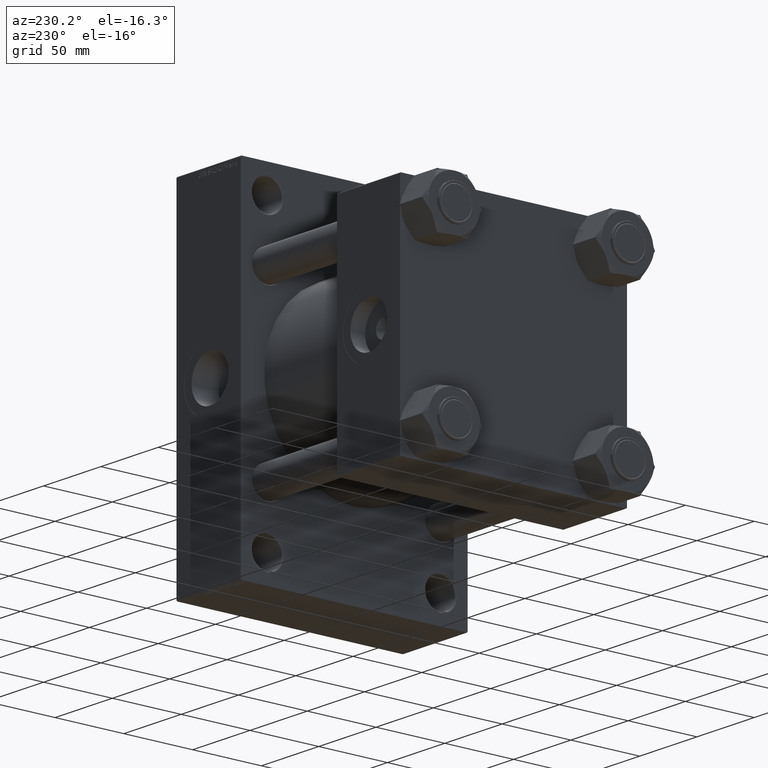
[diagram: clean part render]
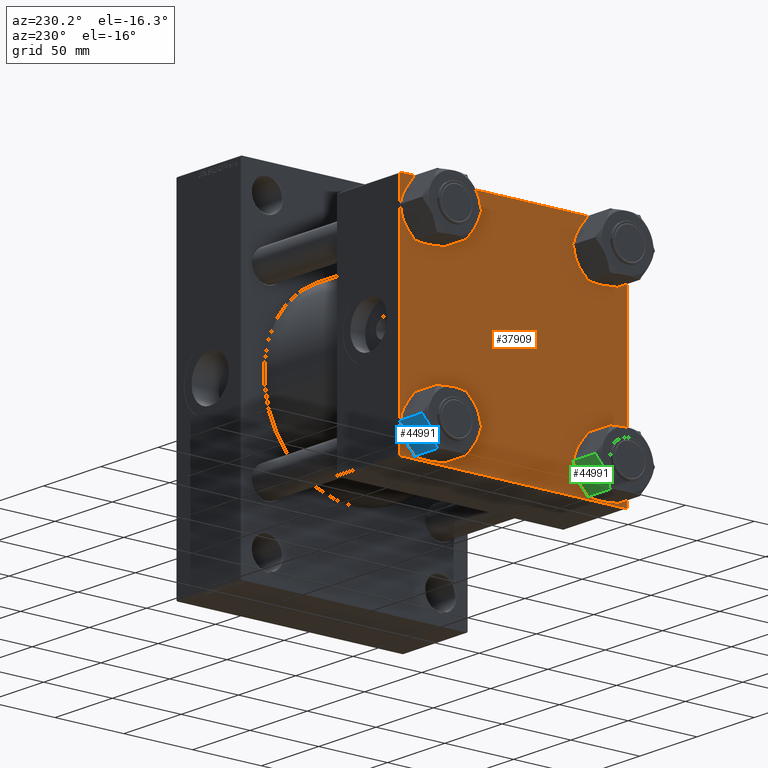
[diagram: same view with three faces highlighted in distinct colors, each labeled with its STEP entity id]
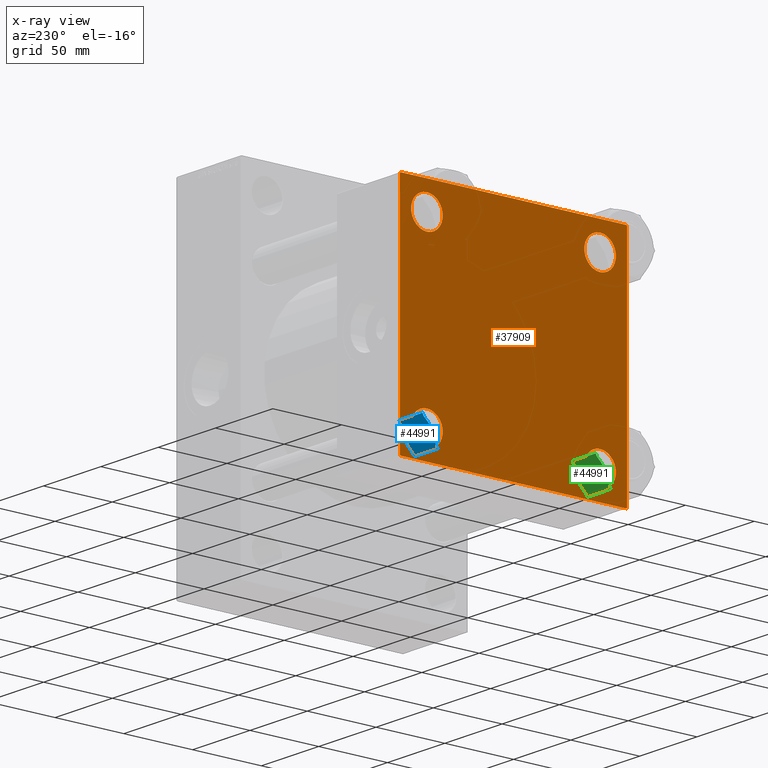
[diagram: x-ray of the same camera — body ghosted, the three highlighted faces saturated]
A machine part, auxiliary view with three faces highlighted in distinct colors.
The next image is the same camera in x-ray (body ghosted, the three faces saturated) — at least one of them is partly hidden behind the body in this view.
Their STEP definitions:

[orange] entity #37909 — the highlighted planar face has unit normal (-1, 0, 0).
#667 = CARTESIAN_POINT ( 'NONE',  ( 0.000000000000000000, 62.95000000000000284, -62.95000000000000284 ) ) ;
#1093 = VECTOR ( 'NONE', #36946, 1000.000000000000114 ) ;
#1631 = DIRECTION ( 'NONE',  ( 1.000000000000000000, -0.000000000000000000, -0.000000000000000000 ) ) ;
#1741 = CARTESIAN_POINT ( 'NONE',  ( 0.000000000000000000, -82.25000000000000000, 82.25000000000000000 ) ) ;
#1869 = AXIS2_PLACEMENT_3D ( 'NONE', #23114, #8187, #4338 ) ;
#2194 = CARTESIAN_POINT ( 'NONE',  ( 0.000000000000000000, 82.00000000000005684, 82.50000000000002842 ) ) ;
#2504 = CARTESIAN_POINT ( 'NONE',  ( 0.000000000000000000, 0.000000000000000000, 0.000000000000000000 ) ) ;
#2676 = ORIENTED_EDGE ( 'NONE', *, *, #3884, .T. ) ;
#3274 = CARTESIAN_POINT ( 'NONE',  ( 0.000000000000000000, 62.95000000000000284, -74.45000000000001705 ) ) ;
#3884 = EDGE_CURVE ( 'NONE', #37974, #16047, #37154, .T. ) ;
#4338 = DIRECTION ( 'NONE',  ( 0.000000000000000000, 0.000000000000000000, 1.000000000000000000 ) ) ;
#4575 = EDGE_LOOP ( 'NONE', ( #29239, #29200 ) ) ;
#4580 = VERTEX_POINT ( 'NONE', #38118 ) ;
#4746 = CARTESIAN_POINT ( 'NONE',  ( 0.000000000000000000, 62.95000000000000284, -51.44999999999999574 ) ) ;
#5120 = ORIENTED_EDGE ( 'NONE', *, *, #42693, .T. ) ;
#6092 = DIRECTION ( 'NONE',  ( 0.000000000000000000, 0.000000000000000000, -1.000000000000000000 ) ) ;
#6365 = DIRECTION ( 'NONE',  ( -1.000000000000000000, 0.000000000000000000, 0.000000000000000000 ) ) ;
#6531 = VERTEX_POINT ( 'NONE', #39704 ) ;
#6840 = FACE_BOUND ( 'NONE', #9731, .T. ) ;
#7472 = VERTEX_POINT ( 'NONE', #25954 ) ;
#8187 = DIRECTION ( 'NONE',  ( 1.000000000000000000, -0.000000000000000000, -0.000000000000000000 ) ) ;
#8279 = VERTEX_POINT ( 'NONE', #21904 ) ;
#8517 = DIRECTION ( 'NONE',  ( -0.000000000000000000, -0.7071067811865474617, -0.7071067811865474617 ) ) ;
#8749 = VECTOR ( 'NONE', #28018, 1000.000000000000114 ) ;
#9053 = CARTESIAN_POINT ( 'NONE',  ( 0.000000000000000000, -62.94999999999998153, 74.45000000000003126 ) ) ;
#9073 = DIRECTION ( 'NONE',  ( 1.000000000000000000, -0.000000000000000000, -0.000000000000000000 ) ) ;
#9400 = CARTESIAN_POINT ( 'NONE',  ( 0.000000000000000000, -82.49999999999997158, 82.00000000000001421 ) ) ;
#9426 = EDGE_CURVE ( 'NONE', #26120, #6531, #15670, .T. ) ;
#9496 = AXIS2_PLACEMENT_3D ( 'NONE', #667, #40696, #37080 ) ;
#9573 = CARTESIAN_POINT ( 'NONE',  ( 0.000000000000000000, -62.94999999999998153, 62.95000000000001705 ) ) ;
#9731 = EDGE_LOOP ( 'NONE', ( #21799, #12134 ) ) ;
#9839 = ORIENTED_EDGE ( 'NONE', *, *, #17636, .T. ) ;
#9971 = FACE_BOUND ( 'NONE', #18046, .T. ) ;
#10188 = VERTEX_POINT ( 'NONE', #34646 ) ;
#10419 = EDGE_CURVE ( 'NONE', #4580, #26126, #31822, .T. ) ;
#10786 = DIRECTION ( 'NONE',  ( 0.000000000000000000, -1.000000000000000000, -8.410780489584519171E-17 ) ) ;
#11725 = VECTOR ( 'NONE', #27481, 1000.000000000000000 ) ;
#12134 = ORIENTED_EDGE ( 'NONE', *, *, #19799, .T. ) ;
#12167 = DIRECTION ( 'NONE',  ( 1.000000000000000000, -0.000000000000000000, -0.000000000000000000 ) ) ;
#12206 = DIRECTION ( 'NONE',  ( 0.000000000000000000, -0.7071067811865376918, 0.7071067811865574537 ) ) ;
#12342 = CARTESIAN_POINT ( 'NONE',  ( 0.000000000000000000, 62.95000000000000284, 74.45000000000001705 ) ) ;
#12452 = VERTEX_POINT ( 'NONE', #3274 ) ;
#12628 = DIRECTION ( 'NONE',  ( 0.000000000000000000, 0.000000000000000000, 1.000000000000000000 ) ) ;
#12718 = ORIENTED_EDGE ( 'NONE', *, *, #38722, .T. ) ;
#14414 = LINE ( 'NONE', #43836, #16693 ) ;
#14960 = ORIENTED_EDGE ( 'NONE', *, *, #18495, .T. ) ;
#15239 = LINE ( 'NONE', #25847, #1093 ) ;
#15283 = CARTESIAN_POINT ( 'NONE',  ( 0.000000000000000000, -62.94999999999998153, 51.45000000000000995 ) ) ;
#15670 = CIRCLE ( 'NONE', #35765, 11.50000000000001066 ) ;
#15686 = CIRCLE ( 'NONE', #9496, 11.50000000000001066 ) ;
#15926 = LINE ( 'NONE', #19776, #11725 ) ;
#16047 = VERTEX_POINT ( 'NONE', #9053 ) ;
#16225 = CARTESIAN_POINT ( 'NONE',  ( 0.000000000000000000, 82.25000000000001421, -82.25000000000001421 ) ) ;
#16491 = AXIS2_PLACEMENT_3D ( 'NONE', #37321, #25793, #17827 ) ;
#16500 = CARTESIAN_POINT ( 'NONE',  ( 0.000000000000000000, -82.50000000000000000, -81.99999999999998579 ) ) ;
#16680 = EDGE_CURVE ( 'NONE', #16789, #12452, #15686, .T. ) ;
#16693 = VECTOR ( 'NONE', #10786, 1000.000000000000000 ) ;
#16789 = VERTEX_POINT ( 'NONE', #4746 ) ;
#17103 = CARTESIAN_POINT ( 'NONE',  ( 0.000000000000000000, -81.99999999999997158, 82.50000000000001421 ) ) ;
#17294 = EDGE_CURVE ( 'NONE', #29528, #8279, #35517, .T. ) ;
#17636 = EDGE_CURVE ( 'NONE', #28740, #18050, #38886, .T. ) ;
#17827 = DIRECTION ( 'NONE',  ( 0.000000000000000000, 0.000000000000000000, 1.000000000000000000 ) ) ;
#18046 = EDGE_LOOP ( 'NONE', ( #31785, #46985 ) ) ;
#18050 = VERTEX_POINT ( 'NONE', #17103 ) ;
#18495 = EDGE_CURVE ( 'NONE', #8279, #10188, #37496, .T. ) ;
#18660 = EDGE_CURVE ( 'NONE', #33003, #29528, #15239, .T. ) ;
#19632 = EDGE_CURVE ( 'NONE', #6531, #26120, #33461, .T. ) ;
#19776 = CARTESIAN_POINT ( 'NONE',  ( 0.000000000000000000, 82.50000000000002842, -82.49999999999997158 ) ) ;
#19799 = EDGE_CURVE ( 'NONE', #12452, #16789, #41947, .T. ) ;
#19865 = CARTESIAN_POINT ( 'NONE',  ( 0.000000000000000000, -62.94999999999998153, -62.95000000000001705 ) ) ;
#20071 = EDGE_LOOP ( 'NONE', ( #12718, #2676 ) ) ;
#20133 = CARTESIAN_POINT ( 'NONE',  ( 0.000000000000000000, -82.25000000000115108, -82.24999999999886313 ) ) ;
#20373 = ORIENTED_EDGE ( 'NONE', *, *, #42489, .F. ) ;
#20403 = DIRECTION ( 'NONE',  ( 0.000000000000000000, 0.000000000000000000, 1.000000000000000000 ) ) ;
#21326 = DIRECTION ( 'NONE',  ( 1.000000000000000000, -0.000000000000000000, -0.000000000000000000 ) ) ;
#21701 = VECTOR ( 'NONE', #32237, 1000.000000000000000 ) ;
#21799 = ORIENTED_EDGE ( 'NONE', *, *, #16680, .T. ) ;
#21904 = CARTESIAN_POINT ( 'NONE',  ( 0.000000000000000000, 82.50000000000002842, -82.00000000000000000 ) ) ;
#22364 = AXIS2_PLACEMENT_3D ( 'NONE', #2504, #6365, #24936 ) ;
#22861 = EDGE_LOOP ( 'NONE', ( #37093, #14960, #46516, #5120, #20373, #9839, #43639, #44985 ) ) ;
#23114 = CARTESIAN_POINT ( 'NONE',  ( 0.000000000000000000, 62.95000000000000284, -62.95000000000000284 ) ) ;
#23158 = AXIS2_PLACEMENT_3D ( 'NONE', #9573, #1631, #46713 ) ;
#23777 = CARTESIAN_POINT ( 'NONE',  ( 0.000000000000000000, -62.94999999999998153, -62.95000000000001705 ) ) ;
#24009 = CARTESIAN_POINT ( 'NONE',  ( 0.000000000000000000, 82.50000000000002842, 82.00000000000005684 ) ) ;
#24936 = DIRECTION ( 'NONE',  ( 0.000000000000000000, 0.000000000000000000, 1.000000000000000000 ) ) ;
#25600 = AXIS2_PLACEMENT_3D ( 'NONE', #26406, #12167, #34595 ) ;
#25793 = DIRECTION ( 'NONE',  ( 1.000000000000000000, -0.000000000000000000, -0.000000000000000000 ) ) ;
#25847 = CARTESIAN_POINT ( 'NONE',  ( 0.000000000000000000, 82.25000000000002842, 82.25000000000002842 ) ) ;
#25954 = CARTESIAN_POINT ( 'NONE',  ( 0.000000000000000000, -82.00000000000000000, -82.50000000000000000 ) ) ;
#26120 = VERTEX_POINT ( 'NONE', #12342 ) ;
#26126 = VERTEX_POINT ( 'NONE', #34545 ) ;
#26406 = CARTESIAN_POINT ( 'NONE',  ( 0.000000000000000000, -62.94999999999998153, 62.95000000000001705 ) ) ;
#27084 = VERTEX_POINT ( 'NONE', #16500 ) ;
#27481 = DIRECTION ( 'NONE',  ( 0.000000000000000000, -1.000000000000000000, -1.682156097916903588E-16 ) ) ;
#27615 = LINE ( 'NONE', #20133, #28669 ) ;
#28018 = DIRECTION ( 'NONE',  ( -0.000000000000000000, 0.7071067811865474617, 0.7071067811865474617 ) ) ;
#28095 = CARTESIAN_POINT ( 'NONE',  ( 0.000000000000000000, 62.95000000000000284, 62.95000000000000284 ) ) ;
#28669 = VECTOR ( 'NONE', #12206, 999.9999999999998863 ) ;
#28740 = VERTEX_POINT ( 'NONE', #9400 ) ;
#28760 = AXIS2_PLACEMENT_3D ( 'NONE', #19865, #34812, #12628 ) ;
#29200 = ORIENTED_EDGE ( 'NONE', *, *, #19632, .T. ) ;
#29239 = ORIENTED_EDGE ( 'NONE', *, *, #9426, .T. ) ;
#29338 = EDGE_CURVE ( 'NONE', #33003, #18050, #14414, .T. ) ;
#29421 = EDGE_CURVE ( 'NONE', #26126, #4580, #42110, .T. ) ;
#29528 = VERTEX_POINT ( 'NONE', #24009 ) ;
#31785 = ORIENTED_EDGE ( 'NONE', *, *, #10419, .T. ) ;
#31822 = CIRCLE ( 'NONE', #28760, 11.50000000000001066 ) ;
#32002 = LINE ( 'NONE', #46487, #21701 ) ;
#32237 = DIRECTION ( 'NONE',  ( 0.000000000000000000, -1.682156097916903588E-16, -1.000000000000000000 ) ) ;
#32399 = FACE_BOUND ( 'NONE', #4575, .T. ) ;
#33003 = VERTEX_POINT ( 'NONE', #2194 ) ;
#33461 = CIRCLE ( 'NONE', #16491, 11.50000000000001066 ) ;
#34545 = CARTESIAN_POINT ( 'NONE',  ( 0.000000000000000000, -62.94999999999998153, -74.45000000000003126 ) ) ;
#34595 = DIRECTION ( 'NONE',  ( 0.000000000000000000, 0.000000000000000000, 1.000000000000000000 ) ) ;
#34646 = CARTESIAN_POINT ( 'NONE',  ( 0.000000000000000000, 82.00000000000005684, -82.49999999999997158 ) ) ;
#34812 = DIRECTION ( 'NONE',  ( 1.000000000000000000, -0.000000000000000000, -0.000000000000000000 ) ) ;
#35517 = LINE ( 'NONE', #39141, #41103 ) ;
#35553 = PLANE ( 'NONE',  #22364 ) ;
#35574 = DIRECTION ( 'NONE',  ( 0.000000000000000000, 0.000000000000000000, 1.000000000000000000 ) ) ;
#35765 = AXIS2_PLACEMENT_3D ( 'NONE', #28095, #21326, #35574 ) ;
#36946 = DIRECTION ( 'NONE',  ( 0.000000000000000000, 0.7071067811865474617, -0.7071067811865474617 ) ) ;
#37080 = DIRECTION ( 'NONE',  ( 0.000000000000000000, 0.000000000000000000, 1.000000000000000000 ) ) ;
#37093 = ORIENTED_EDGE ( 'NONE', *, *, #17294, .T. ) ;
#37154 = CIRCLE ( 'NONE', #25600, 11.50000000000001066 ) ;
#37321 = CARTESIAN_POINT ( 'NONE',  ( 0.000000000000000000, 62.95000000000000284, 62.95000000000000284 ) ) ;
#37496 = LINE ( 'NONE', #16225, #44981 ) ;
#37521 = AXIS2_PLACEMENT_3D ( 'NONE', #23777, #9073, #20403 ) ;
#37909 = ADVANCED_FACE ( 'NONE', ( #45467, #9971, #6840, #32399, #43026 ), #35553, .T. ) ;
#37974 = VERTEX_POINT ( 'NONE', #15283 ) ;
#38118 = CARTESIAN_POINT ( 'NONE',  ( 0.000000000000000000, -62.94999999999998153, -51.45000000000000995 ) ) ;
#38722 = EDGE_CURVE ( 'NONE', #16047, #37974, #47042, .T. ) ;
#38886 = LINE ( 'NONE', #1741, #8749 ) ;
#39141 = CARTESIAN_POINT ( 'NONE',  ( 0.000000000000000000, 82.50000000000002842, 82.50000000000002842 ) ) ;
#39704 = CARTESIAN_POINT ( 'NONE',  ( 0.000000000000000000, 62.95000000000000284, 51.44999999999999574 ) ) ;
#40696 = DIRECTION ( 'NONE',  ( 1.000000000000000000, -0.000000000000000000, -0.000000000000000000 ) ) ;
#41103 = VECTOR ( 'NONE', #6092, 1000.000000000000000 ) ;
#41751 = EDGE_CURVE ( 'NONE', #10188, #7472, #15926, .T. ) ;
#41947 = CIRCLE ( 'NONE', #1869, 11.50000000000001066 ) ;
#42110 = CIRCLE ( 'NONE', #37521, 11.50000000000001066 ) ;
#42489 = EDGE_CURVE ( 'NONE', #28740, #27084, #32002, .T. ) ;
#42693 = EDGE_CURVE ( 'NONE', #7472, #27084, #27615, .T. ) ;
#43026 = FACE_OUTER_BOUND ( 'NONE', #22861, .T. ) ;
#43639 = ORIENTED_EDGE ( 'NONE', *, *, #29338, .F. ) ;
#43836 = CARTESIAN_POINT ( 'NONE',  ( 0.000000000000000000, 82.50000000000002842, 82.50000000000002842 ) ) ;
#44981 = VECTOR ( 'NONE', #8517, 1000.000000000000114 ) ;
#44985 = ORIENTED_EDGE ( 'NONE', *, *, #18660, .T. ) ;
#45467 = FACE_BOUND ( 'NONE', #20071, .T. ) ;
#46487 = CARTESIAN_POINT ( 'NONE',  ( 0.000000000000000000, -82.49999999999997158, 82.50000000000001421 ) ) ;
#46516 = ORIENTED_EDGE ( 'NONE', *, *, #41751, .T. ) ;
#46713 = DIRECTION ( 'NONE',  ( 0.000000000000000000, 0.000000000000000000, 1.000000000000000000 ) ) ;
#46985 = ORIENTED_EDGE ( 'NONE', *, *, #29421, .T. ) ;
#47042 = CIRCLE ( 'NONE', #23158, 11.50000000000001066 ) ;

[blue] entity #44991 — the highlighted planar face has unit normal (0, -0.866, 0.5).
#543 = DIRECTION ( 'NONE',  ( -0.4999999999999993894, 0.8660254037844389297, 0.000000000000000000 ) ) ;
#1247 = CARTESIAN_POINT ( 'NONE',  ( -10.81000000000000227, -18.72346922981957107, -22.00000000000000000 ) ) ;
#1373 = CARTESIAN_POINT ( 'NONE',  ( -10.81000000000000227, -18.72346922981957107, -24.00000000000000000 ) ) ;
#1531 = CARTESIAN_POINT ( 'NONE',  ( -21.62000000000000099, 1.669698520835173435E-14, -2.000000000000001776 ) ) ;
#1723 = B_SPLINE_CURVE_WITH_KNOTS ( 'NONE', 3,
 ( #20478, #7144, #32962, #42679, #18011, #16634, #3290, #6909, #32723, #27716 ),
 .UNSPECIFIED., .F., .F.,
 ( 4, 2, 2, 2, 4 ),
 ( 5.007809737585758646E-07, 0.004555175037830412263, 0.006832512166258740936, 0.007971180730472903972, 0.009109849294687066140 ),
 .UNSPECIFIED. ) ;
#1740 = EDGE_CURVE ( 'NONE', #41836, #32832, #1723, .T. ) ;
#2011 = EDGE_CURVE ( 'NONE', #27802, #17803, #7338, .T. ) ;
#3290 = CARTESIAN_POINT ( 'NONE',  ( -16.98598932500589598, -8.026341931906348037, -0.05945867712355460549 ) ) ;
#3712 = CARTESIAN_POINT ( 'NONE',  ( -10.81000000000000227, -18.72346922981957107, -22.00000000000000000 ) ) ;
#3823 = CARTESIAN_POINT ( 'NONE',  ( -10.81000000000000227, -18.72346922981957107, -2.000000000000001776 ) ) ;
#4409 = CARTESIAN_POINT ( 'NONE',  ( -12.48753218109485275, -15.81789826083145378, -1.417879168323221251 ) ) ;
#4457 = VERTEX_POINT ( 'NONE', #29910 ) ;
#5031 = CARTESIAN_POINT ( 'NONE',  ( -10.81000000000000227, -18.72346922981957107, -24.00000000000000000 ) ) ;
#5145 = EDGE_CURVE ( 'NONE', #4457, #8287, #38881, .T. ) ;
#5578 = CARTESIAN_POINT ( 'NONE',  ( -18.84657086838734230, -4.803720167144733821, -23.28765129395944555 ) ) ;
#5608 = VECTOR ( 'NONE', #543, 1000.000000000000114 ) ;
#5951 = VERTEX_POINT ( 'NONE', #31995 ) ;
#6909 = CARTESIAN_POINT ( 'NONE',  ( -16.60104632518793011, -8.693082765609036144, -0.01197337667081199535 ) ) ;
#7086 = VERTEX_POINT ( 'NONE', #3823 ) ;
#7091 = ORIENTED_EDGE ( 'NONE', *, *, #5145, .F. ) ;
#7144 = CARTESIAN_POINT ( 'NONE',  ( -19.94878361794604515, -2.894631684158861074, -1.393668941363769287 ) ) ;
#7338 = LINE ( 'NONE', #3712, #40137 ) ;
#7468 = VERTEX_POINT ( 'NONE', #7629 ) ;
#7629 = CARTESIAN_POINT ( 'NONE',  ( -11.77388873931088220, -17.05396496048960842, -2.000000000000000000 ) ) ;
#7920 = ORIENTED_EDGE ( 'NONE', *, *, #32009, .F. ) ;
#8287 = VERTEX_POINT ( 'NONE', #26252 ) ;
#8455 = B_SPLINE_CURVE_WITH_KNOTS ( 'NONE', 3,
 ( #8713, #37461, #27046, #15488, #29959, #4409, #34534, #16191 ),
 .UNSPECIFIED., .F., .F.,
 ( 4, 2, 2, 4 ),
 ( 0.009109849294687066140, 0.01366157320126715896, 0.01593743515455720364, 0.01821329710784724484 ),
 .UNSPECIFIED. ) ;
#8713 = CARTESIAN_POINT ( 'NONE',  ( -16.21500000000001762, -9.361734614909776653, 0.000000000000000000 ) ) ;
#9418 = CARTESIAN_POINT ( 'NONE',  ( -19.94246781890516118, -2.905570968988080871, -22.58212083167677520 ) ) ;
#9586 = LINE ( 'NONE', #24298, #19963 ) ;
#9677 = VERTEX_POINT ( 'NONE', #1531 ) ;
#9900 = CARTESIAN_POINT ( 'NONE',  ( -16.21500000000001762, -9.361734614909776653, -24.00000000000000000 ) ) ;
#10132 = CARTESIAN_POINT ( 'NONE',  ( -20.30204076991168449, -2.282772348817309283, -22.30351413196914123 ) ) ;
#12102 = CARTESIAN_POINT ( 'NONE',  ( -12.48121638205395278, -15.82883754566067758, -22.60633105863623271 ) ) ;
#12222 = DIRECTION ( 'NONE',  ( -0.4999999999999993894, 0.8660254037844389297, 0.000000000000000000 ) ) ;
#12312 = EDGE_CURVE ( 'NONE', #5951, #9677, #16563, .T. ) ;
#12378 = ORIENTED_EDGE ( 'NONE', *, *, #2011, .F. ) ;
#13422 = DIRECTION ( 'NONE',  ( -0.000000000000000000, -0.000000000000000000, 1.000000000000000000 ) ) ;
#13766 = CARTESIAN_POINT ( 'NONE',  ( -16.98310883762008316, -8.031331082409121080, -24.00000000000002132 ) ) ;
#14845 = ORIENTED_EDGE ( 'NONE', *, *, #1740, .F. ) ;
#15254 = CARTESIAN_POINT ( 'NONE',  ( -13.20154625327793418, -14.58118961049120266, -23.10638014572221977 ) ) ;
#15488 = CARTESIAN_POINT ( 'NONE',  ( -13.58342913161266807, -13.91974906267480350, -0.7123487060405448990 ) ) ;
#16191 = CARTESIAN_POINT ( 'NONE',  ( -11.77388873931088220, -17.05396496048960842, -2.000000000000000000 ) ) ;
#16563 = LINE ( 'NONE', #42362, #25068 ) ;
#16585 = EDGE_CURVE ( 'NONE', #8287, #5951, #30428, .T. ) ;
#16634 = CARTESIAN_POINT ( 'NONE',  ( -17.17703765647818770, -7.695436515095067875, -0.09483449834988089133 ) ) ;
#17062 = DIRECTION ( 'NONE',  ( 0.4999999999999993894, -0.8660254037844389297, 0.000000000000000000 ) ) ;
#17803 = VERTEX_POINT ( 'NONE', #40792 ) ;
#18011 = CARTESIAN_POINT ( 'NONE',  ( -17.74616263960890805, -6.709683128455873558, -0.2338220771833849909 ) ) ;
#18096 = B_SPLINE_CURVE_WITH_KNOTS ( 'NONE', 3,
 ( #38156, #12102, #15254, #19807, #34531, #45145, #26105, #19115, #27042, #33827 ),
 .UNSPECIFIED., .F., .F.,
 ( 4, 2, 2, 2, 4 ),
 ( 5.007809737492852896E-07, 0.004555175037830406191, 0.006832512166258735732, 0.007971180730472900502, 0.009109849294687067875 ),
 .UNSPECIFIED. ) ;
#18633 = CARTESIAN_POINT ( 'NONE',  ( -16.21500000000001762, -9.361734614909776653, 0.000000000000000000 ) ) ;
#18924 = DIRECTION ( 'NONE',  ( 0.4999999999999993894, -0.8660254037844389297, 0.000000000000000000 ) ) ;
#19115 = CARTESIAN_POINT ( 'NONE',  ( -15.82895367481208737, -10.03038646421051006, -23.98802662332919766 ) ) ;
#19461 = VECTOR ( 'NONE', #34228, 1000.000000000000000 ) ;
#19485 = ORIENTED_EDGE ( 'NONE', *, *, #34744, .F. ) ;
#19807 = CARTESIAN_POINT ( 'NONE',  ( -14.30978229978947525, -12.66166847115395022, -23.62969313679645111 ) ) ;
#19963 = VECTOR ( 'NONE', #17062, 1000.000000000000114 ) ;
#20478 = CARTESIAN_POINT ( 'NONE',  ( -20.65611126068912284, -1.669504269329930457, -2.000000000000000000 ) ) ;
#21761 = EDGE_CURVE ( 'NONE', #32832, #7468, #8455, .T. ) ;
#21809 = AXIS2_PLACEMENT_3D ( 'NONE', #1373, #27161, #12222 ) ;
#22762 = LINE ( 'NONE', #33872, #45680 ) ;
#23850 = CARTESIAN_POINT ( 'NONE',  ( -20.65611126068912284, -1.669504269329930457, -2.000000000000000000 ) ) ;
#24298 = CARTESIAN_POINT ( 'NONE',  ( -10.81000000000000227, -18.72346922981957107, -2.000000000000001776 ) ) ;
#24616 = CARTESIAN_POINT ( 'NONE',  ( -17.73599980468854653, -6.727285674886865685, -23.80918115964521675 ) ) ;
#25068 = VECTOR ( 'NONE', #13422, 1000.000000000000000 ) ;
#25460 = CARTESIAN_POINT ( 'NONE',  ( -10.81000000000000227, -18.72346922981957107, -22.00000000000000000 ) ) ;
#26105 = CARTESIAN_POINT ( 'NONE',  ( -15.44401067499412505, -10.69712729791319283, -23.94054132287644876 ) ) ;
#26252 = CARTESIAN_POINT ( 'NONE',  ( -20.65611126068912640, -1.669504269329924240, -22.00000000000000000 ) ) ;
#27042 = CARTESIAN_POINT ( 'NONE',  ( -16.02284832181305418, -9.694551084289209086, -24.00000000000001776 ) ) ;
#27046 = CARTESIAN_POINT ( 'NONE',  ( -14.69400019531146029, -11.99618355493266897, -0.1908188403547822765 ) ) ;
#27161 = DIRECTION ( 'NONE',  ( 0.8660254037844390407, 0.4999999999999994449, 0.000000000000000000 ) ) ;
#27716 = CARTESIAN_POINT ( 'NONE',  ( -16.21500000000001762, -9.361734614909776653, 0.000000000000000000 ) ) ;
#27802 = VERTEX_POINT ( 'NONE', #25460 ) ;
#28060 = EDGE_LOOP ( 'NONE', ( #12378, #46540, #30334, #42142, #14845, #19485, #42612, #47579, #7091, #7920 ) ) ;
#29910 = CARTESIAN_POINT ( 'NONE',  ( -16.21500000000001762, -9.361734614909776653, -24.00000000000000000 ) ) ;
#29959 = CARTESIAN_POINT ( 'NONE',  ( -13.21634051119548836, -14.55556520411771970, -0.9250850388960920601 ) ) ;
#30334 = ORIENTED_EDGE ( 'NONE', *, *, #47454, .F. ) ;
#30428 = LINE ( 'NONE', #1247, #5608 ) ;
#31995 = CARTESIAN_POINT ( 'NONE',  ( -21.62000000000000099, 1.669698520835173435E-14, -22.00000000000000000 ) ) ;
#32009 = EDGE_CURVE ( 'NONE', #17803, #4457, #18096, .T. ) ;
#32096 = CARTESIAN_POINT ( 'NONE',  ( -19.21365948880452379, -4.167904025701819393, -23.07491496110390372 ) ) ;
#32723 = CARTESIAN_POINT ( 'NONE',  ( -16.40715167818697040, -9.028918145530337114, 1.384475352287154220E-14 ) ) ;
#32832 = VERTEX_POINT ( 'NONE', #18633 ) ;
#32962 = CARTESIAN_POINT ( 'NONE',  ( -19.22845374672207441, -4.142279619328344431, -0.8936198542777825660 ) ) ;
#33827 = CARTESIAN_POINT ( 'NONE',  ( -16.21500000000001762, -9.361734614909776653, -24.00000000000000000 ) ) ;
#33872 = CARTESIAN_POINT ( 'NONE',  ( -10.81000000000000227, -18.72346922981957107, -2.000000000000001776 ) ) ;
#33941 = FACE_OUTER_BOUND ( 'NONE', #28060, .T. ) ;
#34228 = DIRECTION ( 'NONE',  ( -0.000000000000000000, -0.000000000000000000, 1.000000000000000000 ) ) ;
#34531 = CARTESIAN_POINT ( 'NONE',  ( -14.68383736039110588, -12.01378610136366376, -23.76617792281661323 ) ) ;
#34534 = CARTESIAN_POINT ( 'NONE',  ( -12.12795923008832943, -16.44069688100223203, -1.696485868030861432 ) ) ;
#34744 = EDGE_CURVE ( 'NONE', #9677, #41836, #9586, .T. ) ;
#37461 = CARTESIAN_POINT ( 'NONE',  ( -15.44689116237993076, -10.69213814741041624, 1.408785197873352008E-14 ) ) ;
#38156 = CARTESIAN_POINT ( 'NONE',  ( -11.77388873931088042, -17.05396496048961552, -22.00000000000000000 ) ) ;
#38881 = B_SPLINE_CURVE_WITH_KNOTS ( 'NONE', 3,
 ( #9900, #13766, #24616, #5578, #32096, #9418, #10132, #46328 ),
 .UNSPECIFIED., .F., .F.,
 ( 4, 2, 2, 4 ),
 ( 0.009109849294687067875, 0.01366157320126715896, 0.01593743515455720017, 0.01821329710784724484 ),
 .UNSPECIFIED. ) ;
#40137 = VECTOR ( 'NONE', #40856, 1000.000000000000114 ) ;
#40792 = CARTESIAN_POINT ( 'NONE',  ( -11.77388873931088042, -17.05396496048961552, -22.00000000000000000 ) ) ;
#40856 = DIRECTION ( 'NONE',  ( -0.4999999999999993894, 0.8660254037844389297, 0.000000000000000000 ) ) ;
#41836 = VERTEX_POINT ( 'NONE', #23850 ) ;
#42142 = ORIENTED_EDGE ( 'NONE', *, *, #21761, .F. ) ;
#42153 = LINE ( 'NONE', #5031, #19461 ) ;
#42362 = CARTESIAN_POINT ( 'NONE',  ( -21.62000000000000099, 1.669698520835173435E-14, -24.00000000000000000 ) ) ;
#42612 = ORIENTED_EDGE ( 'NONE', *, *, #12312, .F. ) ;
#42679 = CARTESIAN_POINT ( 'NONE',  ( -18.12021770021052802, -6.061800758665592426, -0.3703068632035558805 ) ) ;
#44991 = ADVANCED_FACE ( 'NONE', ( #33941 ), #45265, .F. ) ;
#45145 = CARTESIAN_POINT ( 'NONE',  ( -15.25296234352182978, -11.02803271472447477, -23.90516550165011012 ) ) ;
#45265 = PLANE ( 'NONE',  #21809 ) ;
#45680 = VECTOR ( 'NONE', #18924, 1000.000000000000114 ) ;
#46063 = EDGE_CURVE ( 'NONE', #27802, #7086, #42153, .T. ) ;
#46328 = CARTESIAN_POINT ( 'NONE',  ( -20.65611126068912640, -1.669504269329924240, -22.00000000000000000 ) ) ;
#46540 = ORIENTED_EDGE ( 'NONE', *, *, #46063, .T. ) ;
#47454 = EDGE_CURVE ( 'NONE', #7468, #7086, #22762, .T. ) ;
#47579 = ORIENTED_EDGE ( 'NONE', *, *, #16585, .F. ) ;

[green] entity #44991 — the highlighted planar face has unit normal (0, -0.866, 0.5).
#543 = DIRECTION ( 'NONE',  ( -0.4999999999999993894, 0.8660254037844389297, 0.000000000000000000 ) ) ;
#1247 = CARTESIAN_POINT ( 'NONE',  ( -10.81000000000000227, -18.72346922981957107, -22.00000000000000000 ) ) ;
#1373 = CARTESIAN_POINT ( 'NONE',  ( -10.81000000000000227, -18.72346922981957107, -24.00000000000000000 ) ) ;
#1531 = CARTESIAN_POINT ( 'NONE',  ( -21.62000000000000099, 1.669698520835173435E-14, -2.000000000000001776 ) ) ;
#1723 = B_SPLINE_CURVE_WITH_KNOTS ( 'NONE', 3,
 ( #20478, #7144, #32962, #42679, #18011, #16634, #3290, #6909, #32723, #27716 ),
 .UNSPECIFIED., .F., .F.,
 ( 4, 2, 2, 2, 4 ),
 ( 5.007809737585758646E-07, 0.004555175037830412263, 0.006832512166258740936, 0.007971180730472903972, 0.009109849294687066140 ),
 .UNSPECIFIED. ) ;
#1740 = EDGE_CURVE ( 'NONE', #41836, #32832, #1723, .T. ) ;
#2011 = EDGE_CURVE ( 'NONE', #27802, #17803, #7338, .T. ) ;
#3290 = CARTESIAN_POINT ( 'NONE',  ( -16.98598932500589598, -8.026341931906348037, -0.05945867712355460549 ) ) ;
#3712 = CARTESIAN_POINT ( 'NONE',  ( -10.81000000000000227, -18.72346922981957107, -22.00000000000000000 ) ) ;
#3823 = CARTESIAN_POINT ( 'NONE',  ( -10.81000000000000227, -18.72346922981957107, -2.000000000000001776 ) ) ;
#4409 = CARTESIAN_POINT ( 'NONE',  ( -12.48753218109485275, -15.81789826083145378, -1.417879168323221251 ) ) ;
#4457 = VERTEX_POINT ( 'NONE', #29910 ) ;
#5031 = CARTESIAN_POINT ( 'NONE',  ( -10.81000000000000227, -18.72346922981957107, -24.00000000000000000 ) ) ;
#5145 = EDGE_CURVE ( 'NONE', #4457, #8287, #38881, .T. ) ;
#5578 = CARTESIAN_POINT ( 'NONE',  ( -18.84657086838734230, -4.803720167144733821, -23.28765129395944555 ) ) ;
#5608 = VECTOR ( 'NONE', #543, 1000.000000000000114 ) ;
#5951 = VERTEX_POINT ( 'NONE', #31995 ) ;
#6909 = CARTESIAN_POINT ( 'NONE',  ( -16.60104632518793011, -8.693082765609036144, -0.01197337667081199535 ) ) ;
#7086 = VERTEX_POINT ( 'NONE', #3823 ) ;
#7091 = ORIENTED_EDGE ( 'NONE', *, *, #5145, .F. ) ;
#7144 = CARTESIAN_POINT ( 'NONE',  ( -19.94878361794604515, -2.894631684158861074, -1.393668941363769287 ) ) ;
#7338 = LINE ( 'NONE', #3712, #40137 ) ;
#7468 = VERTEX_POINT ( 'NONE', #7629 ) ;
#7629 = CARTESIAN_POINT ( 'NONE',  ( -11.77388873931088220, -17.05396496048960842, -2.000000000000000000 ) ) ;
#7920 = ORIENTED_EDGE ( 'NONE', *, *, #32009, .F. ) ;
#8287 = VERTEX_POINT ( 'NONE', #26252 ) ;
#8455 = B_SPLINE_CURVE_WITH_KNOTS ( 'NONE', 3,
 ( #8713, #37461, #27046, #15488, #29959, #4409, #34534, #16191 ),
 .UNSPECIFIED., .F., .F.,
 ( 4, 2, 2, 4 ),
 ( 0.009109849294687066140, 0.01366157320126715896, 0.01593743515455720364, 0.01821329710784724484 ),
 .UNSPECIFIED. ) ;
#8713 = CARTESIAN_POINT ( 'NONE',  ( -16.21500000000001762, -9.361734614909776653, 0.000000000000000000 ) ) ;
#9418 = CARTESIAN_POINT ( 'NONE',  ( -19.94246781890516118, -2.905570968988080871, -22.58212083167677520 ) ) ;
#9586 = LINE ( 'NONE', #24298, #19963 ) ;
#9677 = VERTEX_POINT ( 'NONE', #1531 ) ;
#9900 = CARTESIAN_POINT ( 'NONE',  ( -16.21500000000001762, -9.361734614909776653, -24.00000000000000000 ) ) ;
#10132 = CARTESIAN_POINT ( 'NONE',  ( -20.30204076991168449, -2.282772348817309283, -22.30351413196914123 ) ) ;
#12102 = CARTESIAN_POINT ( 'NONE',  ( -12.48121638205395278, -15.82883754566067758, -22.60633105863623271 ) ) ;
#12222 = DIRECTION ( 'NONE',  ( -0.4999999999999993894, 0.8660254037844389297, 0.000000000000000000 ) ) ;
#12312 = EDGE_CURVE ( 'NONE', #5951, #9677, #16563, .T. ) ;
#12378 = ORIENTED_EDGE ( 'NONE', *, *, #2011, .F. ) ;
#13422 = DIRECTION ( 'NONE',  ( -0.000000000000000000, -0.000000000000000000, 1.000000000000000000 ) ) ;
#13766 = CARTESIAN_POINT ( 'NONE',  ( -16.98310883762008316, -8.031331082409121080, -24.00000000000002132 ) ) ;
#14845 = ORIENTED_EDGE ( 'NONE', *, *, #1740, .F. ) ;
#15254 = CARTESIAN_POINT ( 'NONE',  ( -13.20154625327793418, -14.58118961049120266, -23.10638014572221977 ) ) ;
#15488 = CARTESIAN_POINT ( 'NONE',  ( -13.58342913161266807, -13.91974906267480350, -0.7123487060405448990 ) ) ;
#16191 = CARTESIAN_POINT ( 'NONE',  ( -11.77388873931088220, -17.05396496048960842, -2.000000000000000000 ) ) ;
#16563 = LINE ( 'NONE', #42362, #25068 ) ;
#16585 = EDGE_CURVE ( 'NONE', #8287, #5951, #30428, .T. ) ;
#16634 = CARTESIAN_POINT ( 'NONE',  ( -17.17703765647818770, -7.695436515095067875, -0.09483449834988089133 ) ) ;
#17062 = DIRECTION ( 'NONE',  ( 0.4999999999999993894, -0.8660254037844389297, 0.000000000000000000 ) ) ;
#17803 = VERTEX_POINT ( 'NONE', #40792 ) ;
#18011 = CARTESIAN_POINT ( 'NONE',  ( -17.74616263960890805, -6.709683128455873558, -0.2338220771833849909 ) ) ;
#18096 = B_SPLINE_CURVE_WITH_KNOTS ( 'NONE', 3,
 ( #38156, #12102, #15254, #19807, #34531, #45145, #26105, #19115, #27042, #33827 ),
 .UNSPECIFIED., .F., .F.,
 ( 4, 2, 2, 2, 4 ),
 ( 5.007809737492852896E-07, 0.004555175037830406191, 0.006832512166258735732, 0.007971180730472900502, 0.009109849294687067875 ),
 .UNSPECIFIED. ) ;
#18633 = CARTESIAN_POINT ( 'NONE',  ( -16.21500000000001762, -9.361734614909776653, 0.000000000000000000 ) ) ;
#18924 = DIRECTION ( 'NONE',  ( 0.4999999999999993894, -0.8660254037844389297, 0.000000000000000000 ) ) ;
#19115 = CARTESIAN_POINT ( 'NONE',  ( -15.82895367481208737, -10.03038646421051006, -23.98802662332919766 ) ) ;
#19461 = VECTOR ( 'NONE', #34228, 1000.000000000000000 ) ;
#19485 = ORIENTED_EDGE ( 'NONE', *, *, #34744, .F. ) ;
#19807 = CARTESIAN_POINT ( 'NONE',  ( -14.30978229978947525, -12.66166847115395022, -23.62969313679645111 ) ) ;
#19963 = VECTOR ( 'NONE', #17062, 1000.000000000000114 ) ;
#20478 = CARTESIAN_POINT ( 'NONE',  ( -20.65611126068912284, -1.669504269329930457, -2.000000000000000000 ) ) ;
#21761 = EDGE_CURVE ( 'NONE', #32832, #7468, #8455, .T. ) ;
#21809 = AXIS2_PLACEMENT_3D ( 'NONE', #1373, #27161, #12222 ) ;
#22762 = LINE ( 'NONE', #33872, #45680 ) ;
#23850 = CARTESIAN_POINT ( 'NONE',  ( -20.65611126068912284, -1.669504269329930457, -2.000000000000000000 ) ) ;
#24298 = CARTESIAN_POINT ( 'NONE',  ( -10.81000000000000227, -18.72346922981957107, -2.000000000000001776 ) ) ;
#24616 = CARTESIAN_POINT ( 'NONE',  ( -17.73599980468854653, -6.727285674886865685, -23.80918115964521675 ) ) ;
#25068 = VECTOR ( 'NONE', #13422, 1000.000000000000000 ) ;
#25460 = CARTESIAN_POINT ( 'NONE',  ( -10.81000000000000227, -18.72346922981957107, -22.00000000000000000 ) ) ;
#26105 = CARTESIAN_POINT ( 'NONE',  ( -15.44401067499412505, -10.69712729791319283, -23.94054132287644876 ) ) ;
#26252 = CARTESIAN_POINT ( 'NONE',  ( -20.65611126068912640, -1.669504269329924240, -22.00000000000000000 ) ) ;
#27042 = CARTESIAN_POINT ( 'NONE',  ( -16.02284832181305418, -9.694551084289209086, -24.00000000000001776 ) ) ;
#27046 = CARTESIAN_POINT ( 'NONE',  ( -14.69400019531146029, -11.99618355493266897, -0.1908188403547822765 ) ) ;
#27161 = DIRECTION ( 'NONE',  ( 0.8660254037844390407, 0.4999999999999994449, 0.000000000000000000 ) ) ;
#27716 = CARTESIAN_POINT ( 'NONE',  ( -16.21500000000001762, -9.361734614909776653, 0.000000000000000000 ) ) ;
#27802 = VERTEX_POINT ( 'NONE', #25460 ) ;
#28060 = EDGE_LOOP ( 'NONE', ( #12378, #46540, #30334, #42142, #14845, #19485, #42612, #47579, #7091, #7920 ) ) ;
#29910 = CARTESIAN_POINT ( 'NONE',  ( -16.21500000000001762, -9.361734614909776653, -24.00000000000000000 ) ) ;
#29959 = CARTESIAN_POINT ( 'NONE',  ( -13.21634051119548836, -14.55556520411771970, -0.9250850388960920601 ) ) ;
#30334 = ORIENTED_EDGE ( 'NONE', *, *, #47454, .F. ) ;
#30428 = LINE ( 'NONE', #1247, #5608 ) ;
#31995 = CARTESIAN_POINT ( 'NONE',  ( -21.62000000000000099, 1.669698520835173435E-14, -22.00000000000000000 ) ) ;
#32009 = EDGE_CURVE ( 'NONE', #17803, #4457, #18096, .T. ) ;
#32096 = CARTESIAN_POINT ( 'NONE',  ( -19.21365948880452379, -4.167904025701819393, -23.07491496110390372 ) ) ;
#32723 = CARTESIAN_POINT ( 'NONE',  ( -16.40715167818697040, -9.028918145530337114, 1.384475352287154220E-14 ) ) ;
#32832 = VERTEX_POINT ( 'NONE', #18633 ) ;
#32962 = CARTESIAN_POINT ( 'NONE',  ( -19.22845374672207441, -4.142279619328344431, -0.8936198542777825660 ) ) ;
#33827 = CARTESIAN_POINT ( 'NONE',  ( -16.21500000000001762, -9.361734614909776653, -24.00000000000000000 ) ) ;
#33872 = CARTESIAN_POINT ( 'NONE',  ( -10.81000000000000227, -18.72346922981957107, -2.000000000000001776 ) ) ;
#33941 = FACE_OUTER_BOUND ( 'NONE', #28060, .T. ) ;
#34228 = DIRECTION ( 'NONE',  ( -0.000000000000000000, -0.000000000000000000, 1.000000000000000000 ) ) ;
#34531 = CARTESIAN_POINT ( 'NONE',  ( -14.68383736039110588, -12.01378610136366376, -23.76617792281661323 ) ) ;
#34534 = CARTESIAN_POINT ( 'NONE',  ( -12.12795923008832943, -16.44069688100223203, -1.696485868030861432 ) ) ;
#34744 = EDGE_CURVE ( 'NONE', #9677, #41836, #9586, .T. ) ;
#37461 = CARTESIAN_POINT ( 'NONE',  ( -15.44689116237993076, -10.69213814741041624, 1.408785197873352008E-14 ) ) ;
#38156 = CARTESIAN_POINT ( 'NONE',  ( -11.77388873931088042, -17.05396496048961552, -22.00000000000000000 ) ) ;
#38881 = B_SPLINE_CURVE_WITH_KNOTS ( 'NONE', 3,
 ( #9900, #13766, #24616, #5578, #32096, #9418, #10132, #46328 ),
 .UNSPECIFIED., .F., .F.,
 ( 4, 2, 2, 4 ),
 ( 0.009109849294687067875, 0.01366157320126715896, 0.01593743515455720017, 0.01821329710784724484 ),
 .UNSPECIFIED. ) ;
#40137 = VECTOR ( 'NONE', #40856, 1000.000000000000114 ) ;
#40792 = CARTESIAN_POINT ( 'NONE',  ( -11.77388873931088042, -17.05396496048961552, -22.00000000000000000 ) ) ;
#40856 = DIRECTION ( 'NONE',  ( -0.4999999999999993894, 0.8660254037844389297, 0.000000000000000000 ) ) ;
#41836 = VERTEX_POINT ( 'NONE', #23850 ) ;
#42142 = ORIENTED_EDGE ( 'NONE', *, *, #21761, .F. ) ;
#42153 = LINE ( 'NONE', #5031, #19461 ) ;
#42362 = CARTESIAN_POINT ( 'NONE',  ( -21.62000000000000099, 1.669698520835173435E-14, -24.00000000000000000 ) ) ;
#42612 = ORIENTED_EDGE ( 'NONE', *, *, #12312, .F. ) ;
#42679 = CARTESIAN_POINT ( 'NONE',  ( -18.12021770021052802, -6.061800758665592426, -0.3703068632035558805 ) ) ;
#44991 = ADVANCED_FACE ( 'NONE', ( #33941 ), #45265, .F. ) ;
#45145 = CARTESIAN_POINT ( 'NONE',  ( -15.25296234352182978, -11.02803271472447477, -23.90516550165011012 ) ) ;
#45265 = PLANE ( 'NONE',  #21809 ) ;
#45680 = VECTOR ( 'NONE', #18924, 1000.000000000000114 ) ;
#46063 = EDGE_CURVE ( 'NONE', #27802, #7086, #42153, .T. ) ;
#46328 = CARTESIAN_POINT ( 'NONE',  ( -20.65611126068912640, -1.669504269329924240, -22.00000000000000000 ) ) ;
#46540 = ORIENTED_EDGE ( 'NONE', *, *, #46063, .T. ) ;
#47454 = EDGE_CURVE ( 'NONE', #7468, #7086, #22762, .T. ) ;
#47579 = ORIENTED_EDGE ( 'NONE', *, *, #16585, .F. ) ;